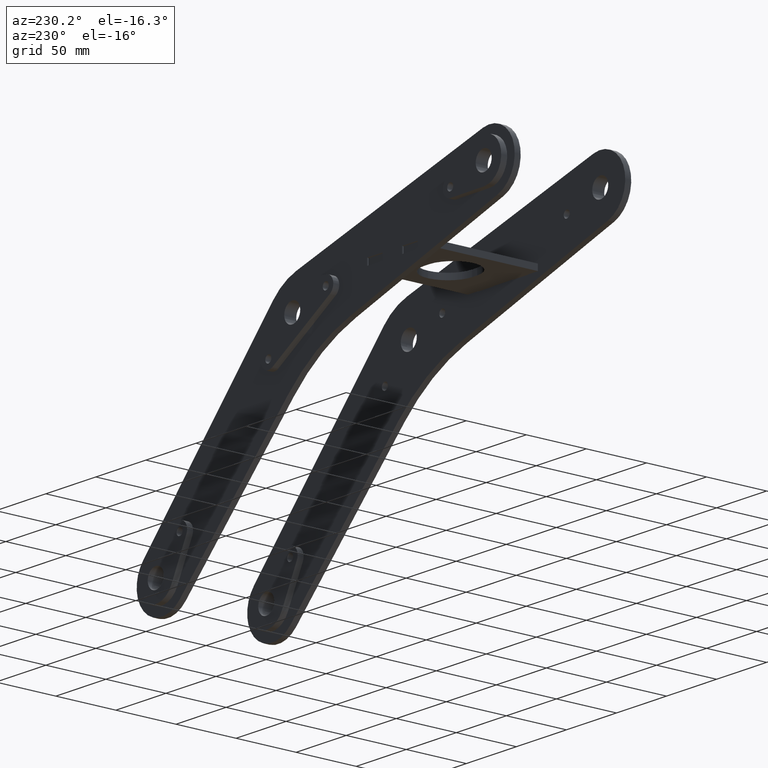
[diagram: clean part render]
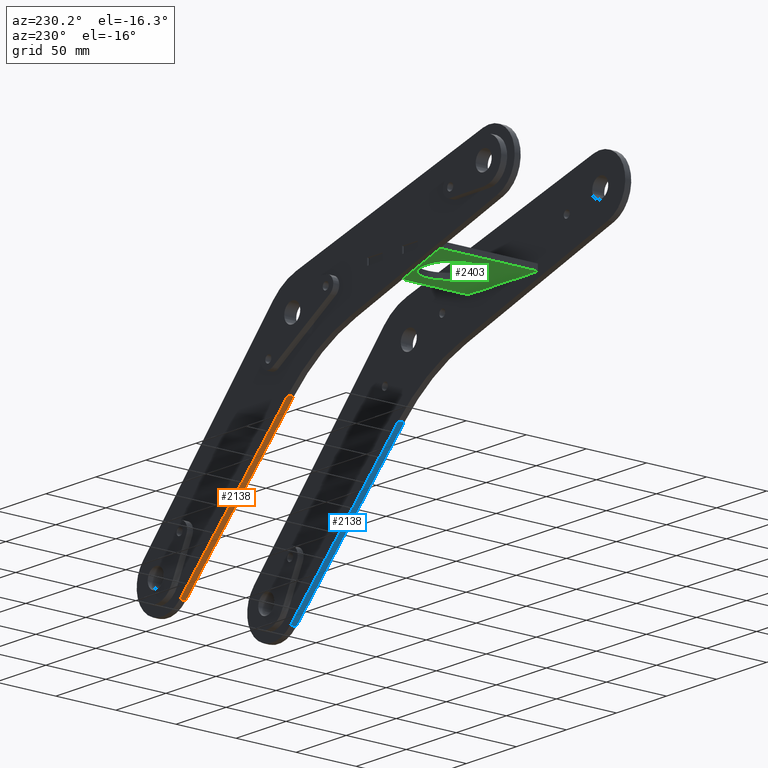
[diagram: same view with three faces highlighted in distinct colors, each labeled with its STEP entity id]
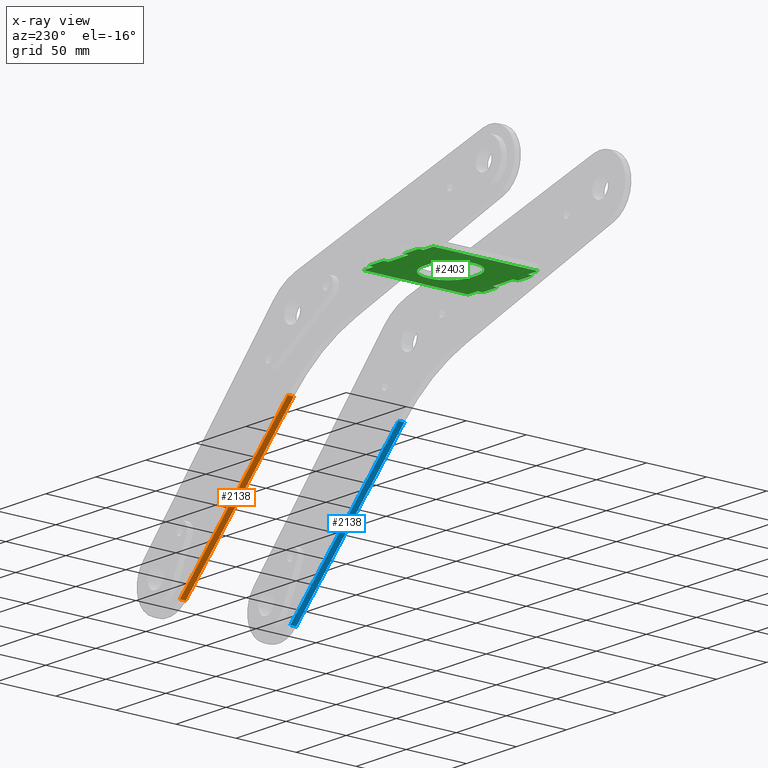
[diagram: x-ray of the same camera — body ghosted, the three highlighted faces saturated]
A machine part, auxiliary view with three faces highlighted in distinct colors.
The next image is the same camera in x-ray (body ghosted, the three faces saturated) — at least one of them is partly hidden behind the body in this view.
Their STEP definitions:

[orange] entity #2138 — the highlighted planar face has unit normal (-0.7193, -0, -0.6947).
#120 = EDGE_CURVE ( 'NONE', #1341, #959, #1098, .T. ) ;
#202 = DIRECTION ( 'NONE',  ( 0.8746197071393919664, -0.4848096202463438309, -0.000000000000000000 ) ) ;
#219 = CARTESIAN_POINT ( 'NONE',  ( 161.0848402507290302, -121.8654926784849835, 0.000000000000000000 ) ) ;
#236 = EDGE_LOOP ( 'NONE', ( #1640, #3608, #1379, #1968 ) ) ;
#864 = CARTESIAN_POINT ( 'NONE',  ( 161.0848402507290302, -121.8654926784849835, -5.000000000000000000 ) ) ;
#959 = VERTEX_POINT ( 'NONE', #3741 ) ;
#972 = VERTEX_POINT ( 'NONE', #2533 ) ;
#1063 = LINE ( 'NONE', #1651, #3520 ) ;
#1098 = LINE ( 'NONE', #219, #3553 ) ;
#1113 = DIRECTION ( 'NONE',  ( 0.000000000000000000, 0.000000000000000000, 1.000000000000000000 ) ) ;
#1197 = CARTESIAN_POINT ( 'NONE',  ( 25.11045735940951218, -46.49366147612066413, 0.000000000000000000 ) ) ;
#1341 = VERTEX_POINT ( 'NONE', #1197 ) ;
#1359 = DIRECTION ( 'NONE',  ( 0.000000000000000000, 0.000000000000000000, 1.000000000000000000 ) ) ;
#1379 = ORIENTED_EDGE ( 'NONE', *, *, #1573, .T. ) ;
#1418 = CARTESIAN_POINT ( 'NONE',  ( 161.0848402507290302, -121.8654926784849835, -5.000000000000000000 ) ) ;
#1573 = EDGE_CURVE ( 'NONE', #972, #2376, #1063, .T. ) ;
#1640 = ORIENTED_EDGE ( 'NONE', *, *, #120, .F. ) ;
#1647 = LINE ( 'NONE', #1922, #2715 ) ;
#1651 = CARTESIAN_POINT ( 'NONE',  ( 161.0848402507290302, -121.8654926784849835, -5.000000000000000000 ) ) ;
#1882 = DIRECTION ( 'NONE',  ( 0.8746197071393919664, -0.4848096202463438309, 0.000000000000000000 ) ) ;
#1922 = CARTESIAN_POINT ( 'NONE',  ( 25.11045735940951218, -46.49366147612066413, -5.000000000000000000 ) ) ;
#1968 = ORIENTED_EDGE ( 'NONE', *, *, #2262, .T. ) ;
#2050 = EDGE_CURVE ( 'NONE', #972, #1341, #1647, .T. ) ;
#2138 = ADVANCED_FACE ( 'NONE', ( #3432 ), #3079, .T. ) ;
#2188 = CARTESIAN_POINT ( 'NONE',  ( 161.0848402507290302, -121.8654926784849835, -5.000000000000000000 ) ) ;
#2262 = EDGE_CURVE ( 'NONE', #2376, #959, #2852, .T. ) ;
#2376 = VERTEX_POINT ( 'NONE', #1418 ) ;
#2529 = AXIS2_PLACEMENT_3D ( 'NONE', #2188, #3120, #1882 ) ;
#2533 = CARTESIAN_POINT ( 'NONE',  ( 25.11045735940951218, -46.49366147612066413, -5.000000000000000000 ) ) ;
#2656 = VECTOR ( 'NONE', #1113, 1000.000000000000000 ) ;
#2715 = VECTOR ( 'NONE', #1359, 1000.000000000000000 ) ;
#2852 = LINE ( 'NONE', #864, #2656 ) ;
#3079 = PLANE ( 'NONE',  #2529 ) ;
#3120 = DIRECTION ( 'NONE',  ( -0.4848096202463438864, -0.8746197071393920774, 0.000000000000000000 ) ) ;
#3432 = FACE_OUTER_BOUND ( 'NONE', #236, .T. ) ;
#3520 = VECTOR ( 'NONE', #202, 1000.000000000000227 ) ;
#3553 = VECTOR ( 'NONE', #3733, 1000.000000000000227 ) ;
#3608 = ORIENTED_EDGE ( 'NONE', *, *, #2050, .F. ) ;
#3733 = DIRECTION ( 'NONE',  ( 0.8746197071393919664, -0.4848096202463438309, -0.000000000000000000 ) ) ;
#3741 = CARTESIAN_POINT ( 'NONE',  ( 161.0848402507290302, -121.8654926784849835, 0.000000000000000000 ) ) ;

[blue] entity #2138 — the highlighted planar face has unit normal (-0.7193, 0, -0.6947).
#120 = EDGE_CURVE ( 'NONE', #1341, #959, #1098, .T. ) ;
#202 = DIRECTION ( 'NONE',  ( 0.8746197071393919664, -0.4848096202463438309, -0.000000000000000000 ) ) ;
#219 = CARTESIAN_POINT ( 'NONE',  ( 161.0848402507290302, -121.8654926784849835, 0.000000000000000000 ) ) ;
#236 = EDGE_LOOP ( 'NONE', ( #1640, #3608, #1379, #1968 ) ) ;
#864 = CARTESIAN_POINT ( 'NONE',  ( 161.0848402507290302, -121.8654926784849835, -5.000000000000000000 ) ) ;
#959 = VERTEX_POINT ( 'NONE', #3741 ) ;
#972 = VERTEX_POINT ( 'NONE', #2533 ) ;
#1063 = LINE ( 'NONE', #1651, #3520 ) ;
#1098 = LINE ( 'NONE', #219, #3553 ) ;
#1113 = DIRECTION ( 'NONE',  ( 0.000000000000000000, 0.000000000000000000, 1.000000000000000000 ) ) ;
#1197 = CARTESIAN_POINT ( 'NONE',  ( 25.11045735940951218, -46.49366147612066413, 0.000000000000000000 ) ) ;
#1341 = VERTEX_POINT ( 'NONE', #1197 ) ;
#1359 = DIRECTION ( 'NONE',  ( 0.000000000000000000, 0.000000000000000000, 1.000000000000000000 ) ) ;
#1379 = ORIENTED_EDGE ( 'NONE', *, *, #1573, .T. ) ;
#1418 = CARTESIAN_POINT ( 'NONE',  ( 161.0848402507290302, -121.8654926784849835, -5.000000000000000000 ) ) ;
#1573 = EDGE_CURVE ( 'NONE', #972, #2376, #1063, .T. ) ;
#1640 = ORIENTED_EDGE ( 'NONE', *, *, #120, .F. ) ;
#1647 = LINE ( 'NONE', #1922, #2715 ) ;
#1651 = CARTESIAN_POINT ( 'NONE',  ( 161.0848402507290302, -121.8654926784849835, -5.000000000000000000 ) ) ;
#1882 = DIRECTION ( 'NONE',  ( 0.8746197071393919664, -0.4848096202463438309, 0.000000000000000000 ) ) ;
#1922 = CARTESIAN_POINT ( 'NONE',  ( 25.11045735940951218, -46.49366147612066413, -5.000000000000000000 ) ) ;
#1968 = ORIENTED_EDGE ( 'NONE', *, *, #2262, .T. ) ;
#2050 = EDGE_CURVE ( 'NONE', #972, #1341, #1647, .T. ) ;
#2138 = ADVANCED_FACE ( 'NONE', ( #3432 ), #3079, .T. ) ;
#2188 = CARTESIAN_POINT ( 'NONE',  ( 161.0848402507290302, -121.8654926784849835, -5.000000000000000000 ) ) ;
#2262 = EDGE_CURVE ( 'NONE', #2376, #959, #2852, .T. ) ;
#2376 = VERTEX_POINT ( 'NONE', #1418 ) ;
#2529 = AXIS2_PLACEMENT_3D ( 'NONE', #2188, #3120, #1882 ) ;
#2533 = CARTESIAN_POINT ( 'NONE',  ( 25.11045735940951218, -46.49366147612066413, -5.000000000000000000 ) ) ;
#2656 = VECTOR ( 'NONE', #1113, 1000.000000000000000 ) ;
#2715 = VECTOR ( 'NONE', #1359, 1000.000000000000000 ) ;
#2852 = LINE ( 'NONE', #864, #2656 ) ;
#3079 = PLANE ( 'NONE',  #2529 ) ;
#3120 = DIRECTION ( 'NONE',  ( -0.4848096202463438864, -0.8746197071393920774, 0.000000000000000000 ) ) ;
#3432 = FACE_OUTER_BOUND ( 'NONE', #236, .T. ) ;
#3520 = VECTOR ( 'NONE', #202, 1000.000000000000227 ) ;
#3553 = VECTOR ( 'NONE', #3733, 1000.000000000000227 ) ;
#3608 = ORIENTED_EDGE ( 'NONE', *, *, #2050, .F. ) ;
#3733 = DIRECTION ( 'NONE',  ( 0.8746197071393919664, -0.4848096202463438309, -0.000000000000000000 ) ) ;
#3741 = CARTESIAN_POINT ( 'NONE',  ( 161.0848402507290302, -121.8654926784849835, 0.000000000000000000 ) ) ;

[green] entity #2403 — the highlighted planar face has unit normal (0, 0, -1).
#32 = CARTESIAN_POINT ( 'NONE',  ( 10.00000000000001599, 46.49999999999998579, -2.500000000000000000 ) ) ;
#47 = VERTEX_POINT ( 'NONE', #1903 ) ;
#56 = AXIS2_PLACEMENT_3D ( 'NONE', #3230, #2941, #587 ) ;
#58 = EDGE_CURVE ( 'NONE', #3204, #233, #3239, .T. ) ;
#59 = PLANE ( 'NONE',  #1729 ) ;
#65 = DIRECTION ( 'NONE',  ( 0.000000000000000000, 0.000000000000000000, 1.000000000000000000 ) ) ;
#79 = FACE_OUTER_BOUND ( 'NONE', #1256, .T. ) ;
#88 = CARTESIAN_POINT ( 'NONE',  ( 2.500000000000000000, 19.99999999999999645, -2.500000000000000000 ) ) ;
#104 = CARTESIAN_POINT ( 'NONE',  ( 24.00000000000001421, 46.49999999999998579, -2.500000000000000000 ) ) ;
#119 = AXIS2_PLACEMENT_3D ( 'NONE', #895, #2646, #3483 ) ;
#128 = VERTEX_POINT ( 'NONE', #1190 ) ;
#141 = DIRECTION ( 'NONE',  ( -0.000000000000000000, 1.000000000000000000, -0.000000000000000000 ) ) ;
#146 = ORIENTED_EDGE ( 'NONE', *, *, #3015, .T. ) ;
#149 = EDGE_CURVE ( 'NONE', #1027, #1411, #2255, .T. ) ;
#168 = DIRECTION ( 'NONE',  ( 1.000000000000000000, 0.000000000000000000, 0.000000000000000000 ) ) ;
#170 = ORIENTED_EDGE ( 'NONE', *, *, #149, .F. ) ;
#177 = CARTESIAN_POINT ( 'NONE',  ( 35.00000000000000000, 43.50000000000001421, -2.500000000000000000 ) ) ;
#192 = VERTEX_POINT ( 'NONE', #2148 ) ;
#203 = DIRECTION ( 'NONE',  ( -1.595148023886719315E-16, 1.000000000000000000, -0.000000000000000000 ) ) ;
#205 = VECTOR ( 'NONE', #830, 1000.000000000000000 ) ;
#210 = ORIENTED_EDGE ( 'NONE', *, *, #1201, .T. ) ;
#214 = CIRCLE ( 'NONE', #2223, 1.000000000000000888 ) ;
#233 = VERTEX_POINT ( 'NONE', #3038 ) ;
#254 = EDGE_CURVE ( 'NONE', #1802, #2805, #390, .T. ) ;
#268 = CARTESIAN_POINT ( 'NONE',  ( -23.99999999999998579, -47.49999999999998579, -2.500000000000000000 ) ) ;
#291 = LINE ( 'NONE', #2647, #1179 ) ;
#312 = LINE ( 'NONE', #3507, #2716 ) ;
#318 = CARTESIAN_POINT ( 'NONE',  ( 0.000000000000000000, 0.000000000000000000, -2.500000000000000000 ) ) ;
#329 = EDGE_CURVE ( 'NONE', #1747, #2325, #2733, .T. ) ;
#363 = CIRCLE ( 'NONE', #679, 1.000000000000000888 ) ;
#390 = LINE ( 'NONE', #2480, #394 ) ;
#394 = VECTOR ( 'NONE', #2752, 1000.000000000000000 ) ;
#402 = CARTESIAN_POINT ( 'NONE',  ( 35.00000000000001421, -43.49999999999998579, -2.500000000000000000 ) ) ;
#408 = DIRECTION ( 'NONE',  ( -0.000000000000000000, 1.000000000000000000, -0.000000000000000000 ) ) ;
#454 = CARTESIAN_POINT ( 'NONE',  ( 11.00000000000001599, -46.49999999999998579, -2.500000000000000000 ) ) ;
#473 = CARTESIAN_POINT ( 'NONE',  ( -9.999999999999987566, -43.49999999999998579, -2.500000000000000000 ) ) ;
#506 = CARTESIAN_POINT ( 'NONE',  ( 10.00000000000001599, 47.49999999999998579, -2.500000000000000000 ) ) ;
#516 = EDGE_CURVE ( 'NONE', #1429, #3338, #3155, .T. ) ;
#539 = VERTEX_POINT ( 'NONE', #2945 ) ;
#540 = B_SPLINE_CURVE_WITH_KNOTS ( 'NONE', 1,
 ( #1152, #2326 ),
 .UNSPECIFIED., .F., .F.,
 ( 2, 2 ),
 ( 0.1500000000000000222, 0.4749999999999999778 ),
 .UNSPECIFIED. ) ;
#543 = VERTEX_POINT ( 'NONE', #1147 ) ;
#549 = ORIENTED_EDGE ( 'NONE', *, *, #1475, .F. ) ;
#550 = CARTESIAN_POINT ( 'NONE',  ( 35.00000000000000000, 43.50000000000001421, -2.500000000000000000 ) ) ;
#554 = EDGE_CURVE ( 'NONE', #539, #3747, #312, .T. ) ;
#587 = DIRECTION ( 'NONE',  ( 1.000000000000000000, 0.000000000000000000, 0.000000000000000000 ) ) ;
#609 = B_SPLINE_CURVE_WITH_KNOTS ( 'NONE', 1,
 ( #3503, #268 ),
 .UNSPECIFIED., .F., .F.,
 ( 2, 2 ),
 ( 0.1500000000000000222, 0.4749999999999999778 ),
 .UNSPECIFIED. ) ;
#623 = CARTESIAN_POINT ( 'NONE',  ( -23.99999999999998579, 46.49999999999998579, -2.500000000000000000 ) ) ;
#624 = VERTEX_POINT ( 'NONE', #550 ) ;
#679 = AXIS2_PLACEMENT_3D ( 'NONE', #984, #1561, #2394 ) ;
#719 = ORIENTED_EDGE ( 'NONE', *, *, #892, .T. ) ;
#722 = ORIENTED_EDGE ( 'NONE', *, *, #2211, .F. ) ;
#730 = VERTEX_POINT ( 'NONE', #3308 ) ;
#762 = ORIENTED_EDGE ( 'NONE', *, *, #2385, .F. ) ;
#776 = CARTESIAN_POINT ( 'NONE',  ( -9.999999999999987566, -46.49999999999998579, -2.500000000000000000 ) ) ;
#788 = LINE ( 'NONE', #2755, #1175 ) ;
#793 = ORIENTED_EDGE ( 'NONE', *, *, #3445, .T. ) ;
#798 = VERTEX_POINT ( 'NONE', #3567 ) ;
#800 = DIRECTION ( 'NONE',  ( -1.000000000000000000, 0.000000000000000000, 0.000000000000000000 ) ) ;
#812 = VECTOR ( 'NONE', #408, 1000.000000000000000 ) ;
#830 = DIRECTION ( 'NONE',  ( 1.595148023886719315E-16, -1.000000000000000000, 0.000000000000000000 ) ) ;
#873 = B_SPLINE_CURVE_WITH_KNOTS ( 'NONE', 1,
 ( #3621, #2761 ),
 .UNSPECIFIED., .F., .F.,
 ( 2, 2 ),
 ( 0.1500000000000000222, 0.4749999999999999778 ),
 .UNSPECIFIED. ) ;
#892 = EDGE_CURVE ( 'NONE', #192, #730, #1219, .T. ) ;
#895 = CARTESIAN_POINT ( 'NONE',  ( -23.99999999999998579, -46.49999999999998579, -2.500000000000000000 ) ) ;
#910 = ORIENTED_EDGE ( 'NONE', *, *, #2369, .T. ) ;
#916 = EDGE_CURVE ( 'NONE', #3158, #3625, #2784, .T. ) ;
#978 = ORIENTED_EDGE ( 'NONE', *, *, #554, .T. ) ;
#979 = DIRECTION ( 'NONE',  ( -0.000000000000000000, 1.000000000000000000, -0.000000000000000000 ) ) ;
#984 = CARTESIAN_POINT ( 'NONE',  ( 11.00000000000001599, 46.49999999999998579, -2.500000000000000000 ) ) ;
#1010 = CARTESIAN_POINT ( 'NONE',  ( -9.999999999999987566, -47.49999999999998579, -2.500000000000000000 ) ) ;
#1015 = DIRECTION ( 'NONE',  ( 0.000000000000000000, -1.000000000000000000, 0.000000000000000000 ) ) ;
#1020 = DIRECTION ( 'NONE',  ( -0.000000000000000000, -0.000000000000000000, -1.000000000000000000 ) ) ;
#1027 = VERTEX_POINT ( 'NONE', #2512 ) ;
#1036 = CARTESIAN_POINT ( 'NONE',  ( -10.99999999999998934, -47.49999999999998579, -2.500000000000000000 ) ) ;
#1055 = ORIENTED_EDGE ( 'NONE', *, *, #516, .F. ) ;
#1056 = LINE ( 'NONE', #177, #2837 ) ;
#1057 = CARTESIAN_POINT ( 'NONE',  ( 25.00000000000001421, 43.50000000000001421, -2.500000000000000000 ) ) ;
#1080 = EDGE_CURVE ( 'NONE', #3338, #1124, #1699, .T. ) ;
#1096 = CARTESIAN_POINT ( 'NONE',  ( -23.99999999999998579, 47.49999999999998579, -2.500000000000000000 ) ) ;
#1110 = CARTESIAN_POINT ( 'NONE',  ( 35.00000000000001421, -43.49999999999998579, -2.500000000000000000 ) ) ;
#1114 = AXIS2_PLACEMENT_3D ( 'NONE', #3764, #1727, #2890 ) ;
#1124 = VERTEX_POINT ( 'NONE', #3149 ) ;
#1129 = DIRECTION ( 'NONE',  ( 0.000000000000000000, -0.000000000000000000, 1.000000000000000000 ) ) ;
#1138 = DIRECTION ( 'NONE',  ( 0.000000000000000000, -1.000000000000000000, 0.000000000000000000 ) ) ;
#1147 = CARTESIAN_POINT ( 'NONE',  ( 11.00000000000001599, 47.49999999999998579, -2.500000000000000000 ) ) ;
#1152 = CARTESIAN_POINT ( 'NONE',  ( 24.00000000000001421, 47.49999999999998579, -2.500000000000000000 ) ) ;
#1163 = VERTEX_POINT ( 'NONE', #3794 ) ;
#1174 = LINE ( 'NONE', #2009, #3469 ) ;
#1175 = VECTOR ( 'NONE', #1279, 1000.000000000000000 ) ;
#1177 = EDGE_CURVE ( 'NONE', #730, #47, #1420, .T. ) ;
#1179 = VECTOR ( 'NONE', #2318, 1000.000000000000000 ) ;
#1190 = CARTESIAN_POINT ( 'NONE',  ( 24.00000000000001421, -47.49999999999998579, -2.500000000000000000 ) ) ;
#1201 = EDGE_CURVE ( 'NONE', #1445, #2816, #291, .T. ) ;
#1211 = DIRECTION ( 'NONE',  ( 1.000000000000000000, 0.000000000000000000, 0.000000000000000000 ) ) ;
#1219 = LINE ( 'NONE', #2709, #2283 ) ;
#1228 = VERTEX_POINT ( 'NONE', #2016 ) ;
#1229 = CARTESIAN_POINT ( 'NONE',  ( -34.99999999999999289, -43.50000000000000000, -2.500000000000000000 ) ) ;
#1234 = VECTOR ( 'NONE', #2863, 1000.000000000000000 ) ;
#1238 = VECTOR ( 'NONE', #1751, 1000.000000000000000 ) ;
#1245 = EDGE_CURVE ( 'NONE', #2473, #1747, #3652, .T. ) ;
#1256 = EDGE_LOOP ( 'NONE', ( #170, #1512, #3511, #2675, #1739, #3238, #3016, #3000, #1055, #2836, #762, #2316, #978, #722, #3188, #1324, #3549, #1792, #146, #3094, #3801, #2142, #3322, #910, #2126, #1333, #2577, #549 ) ) ;
#1257 = CARTESIAN_POINT ( 'NONE',  ( -24.99999999999998579, -47.49999999999998579, -2.500000000000000000 ) ) ;
#1272 = EDGE_CURVE ( 'NONE', #2110, #2473, #609, .T. ) ;
#1279 = DIRECTION ( 'NONE',  ( -1.000000000000000000, -1.982541115402065110E-16, 0.000000000000000000 ) ) ;
#1312 = EDGE_CURVE ( 'NONE', #3399, #128, #1664, .T. ) ;
#1315 = VECTOR ( 'NONE', #3452, 1000.000000000000000 ) ;
#1324 = ORIENTED_EDGE ( 'NONE', *, *, #1735, .F. ) ;
#1333 = ORIENTED_EDGE ( 'NONE', *, *, #1245, .T. ) ;
#1363 = CIRCLE ( 'NONE', #3342, 19.99999999999999645 ) ;
#1369 = VERTEX_POINT ( 'NONE', #3205 ) ;
#1392 = CARTESIAN_POINT ( 'NONE',  ( 35.00000000000000000, 43.50000000000001421, -2.500000000000000000 ) ) ;
#1411 = VERTEX_POINT ( 'NONE', #1229 ) ;
#1413 = EDGE_CURVE ( 'NONE', #543, #1429, #363, .T. ) ;
#1420 = CIRCLE ( 'NONE', #56, 19.99999999999999645 ) ;
#1422 = AXIS2_PLACEMENT_3D ( 'NONE', #104, #1853, #3657 ) ;
#1423 = LINE ( 'NONE', #2604, #1238 ) ;
#1429 = VERTEX_POINT ( 'NONE', #32 ) ;
#1430 = CARTESIAN_POINT ( 'NONE',  ( 24.00000000000001421, -46.49999999999998579, -2.500000000000000000 ) ) ;
#1445 = VERTEX_POINT ( 'NONE', #88 ) ;
#1475 = EDGE_CURVE ( 'NONE', #1411, #2325, #2687, .T. ) ;
#1512 = ORIENTED_EDGE ( 'NONE', *, *, #2209, .F. ) ;
#1530 = EDGE_CURVE ( 'NONE', #1950, #1802, #2666, .T. ) ;
#1561 = DIRECTION ( 'NONE',  ( 0.000000000000000000, -0.000000000000000000, 1.000000000000000000 ) ) ;
#1567 = VECTOR ( 'NONE', #979, 1000.000000000000000 ) ;
#1574 = CARTESIAN_POINT ( 'NONE',  ( -2.500000000000000000, -3.469446951953614189E-15, -2.500000000000000000 ) ) ;
#1578 = EDGE_CURVE ( 'NONE', #3399, #1163, #3106, .T. ) ;
#1628 = DIRECTION ( 'NONE',  ( -1.000000000000000000, 0.000000000000000000, 0.000000000000000000 ) ) ;
#1636 = EDGE_LOOP ( 'NONE', ( #2013, #719, #2762, #793, #210 ) ) ;
#1664 = CIRCLE ( 'NONE', #2663, 1.000000000000000888 ) ;
#1699 = LINE ( 'NONE', #1392, #1234 ) ;
#1727 = DIRECTION ( 'NONE',  ( -0.000000000000000000, -0.000000000000000000, -1.000000000000000000 ) ) ;
#1729 = AXIS2_PLACEMENT_3D ( 'NONE', #318, #3629, #3291 ) ;
#1734 = VECTOR ( 'NONE', #141, 1000.000000000000000 ) ;
#1735 = EDGE_CURVE ( 'NONE', #1163, #2463, #1423, .T. ) ;
#1739 = ORIENTED_EDGE ( 'NONE', *, *, #3687, .F. ) ;
#1747 = VERTEX_POINT ( 'NONE', #2271 ) ;
#1751 = DIRECTION ( 'NONE',  ( 1.000000000000000000, 1.982541115402065110E-16, -0.000000000000000000 ) ) ;
#1792 = ORIENTED_EDGE ( 'NONE', *, *, #1312, .T. ) ;
#1802 = VERTEX_POINT ( 'NONE', #3477 ) ;
#1828 = CARTESIAN_POINT ( 'NONE',  ( 25.00000000000001421, -46.49999999999998579, -2.500000000000000000 ) ) ;
#1853 = DIRECTION ( 'NONE',  ( 0.000000000000000000, -0.000000000000000000, 1.000000000000000000 ) ) ;
#1899 = CARTESIAN_POINT ( 'NONE',  ( 11.00000000000001599, -47.49999999999998579, -2.500000000000000000 ) ) ;
#1903 = CARTESIAN_POINT ( 'NONE',  ( 22.49999999999999645, -3.469446951953614189E-15, -2.500000000000000000 ) ) ;
#1942 = DIRECTION ( 'NONE',  ( 1.000000000000000000, 0.000000000000000000, 0.000000000000000000 ) ) ;
#1943 = CARTESIAN_POINT ( 'NONE',  ( -10.99999999999998934, 47.49999999999998579, -2.500000000000000000 ) ) ;
#1950 = VERTEX_POINT ( 'NONE', #3279 ) ;
#1977 = CIRCLE ( 'NONE', #3646, 19.99999999999999645 ) ;
#2009 = CARTESIAN_POINT ( 'NONE',  ( -9.999999999999987566, 47.49999999999998579, -2.500000000000000000 ) ) ;
#2013 = ORIENTED_EDGE ( 'NONE', *, *, #2078, .T. ) ;
#2016 = CARTESIAN_POINT ( 'NONE',  ( -10.99999999999998934, 47.49999999999998579, -2.500000000000000000 ) ) ;
#2046 = VECTOR ( 'NONE', #3300, 1000.000000000000000 ) ;
#2047 = CARTESIAN_POINT ( 'NONE',  ( 10.00000000000001599, 43.50000000000000711, -2.500000000000000000 ) ) ;
#2078 = EDGE_CURVE ( 'NONE', #2816, #192, #1977, .T. ) ;
#2090 = VERTEX_POINT ( 'NONE', #1899 ) ;
#2110 = VERTEX_POINT ( 'NONE', #1036 ) ;
#2126 = ORIENTED_EDGE ( 'NONE', *, *, #1272, .T. ) ;
#2142 = ORIENTED_EDGE ( 'NONE', *, *, #2885, .F. ) ;
#2148 = CARTESIAN_POINT ( 'NONE',  ( -2.500000000000000000, -19.99999999999999645, -2.500000000000000000 ) ) ;
#2209 = EDGE_CURVE ( 'NONE', #2805, #1027, #1056, .T. ) ;
#2211 = EDGE_CURVE ( 'NONE', #624, #3747, #788, .T. ) ;
#2212 = CARTESIAN_POINT ( 'NONE',  ( 25.00000000000001421, -47.49999999999998579, -2.500000000000000000 ) ) ;
#2223 = AXIS2_PLACEMENT_3D ( 'NONE', #2635, #1129, #800 ) ;
#2255 = LINE ( 'NONE', #2291, #205 ) ;
#2271 = CARTESIAN_POINT ( 'NONE',  ( -24.99999999999998579, -46.49999999999998579, -2.500000000000000000 ) ) ;
#2272 = CARTESIAN_POINT ( 'NONE',  ( 35.00000000000000000, 43.50000000000001421, -2.500000000000000000 ) ) ;
#2282 = DIRECTION ( 'NONE',  ( 1.000000000000000000, 1.982541115402065110E-16, -0.000000000000000000 ) ) ;
#2283 = VECTOR ( 'NONE', #168, 1000.000000000000000 ) ;
#2291 = CARTESIAN_POINT ( 'NONE',  ( -35.00000000000000000, 43.50000000000000000, -2.500000000000000000 ) ) ;
#2316 = ORIENTED_EDGE ( 'NONE', *, *, #2930, .F. ) ;
#2318 = DIRECTION ( 'NONE',  ( -1.000000000000000000, -0.000000000000000000, -0.000000000000000000 ) ) ;
#2325 = VERTEX_POINT ( 'NONE', #3492 ) ;
#2326 = CARTESIAN_POINT ( 'NONE',  ( 11.00000000000001599, 47.49999999999998579, -2.500000000000000000 ) ) ;
#2346 = VECTOR ( 'NONE', #1015, 1000.000000000000000 ) ;
#2369 = EDGE_CURVE ( 'NONE', #3158, #2110, #3529, .T. ) ;
#2385 = EDGE_CURVE ( 'NONE', #798, #543, #540, .T. ) ;
#2388 = CARTESIAN_POINT ( 'NONE',  ( 35.00000000000001421, -43.49999999999998579, -2.500000000000000000 ) ) ;
#2394 = DIRECTION ( 'NONE',  ( -1.000000000000000000, 0.000000000000000000, 0.000000000000000000 ) ) ;
#2403 = ADVANCED_FACE ( 'NONE', ( #3610, #79 ), #59, .T. ) ;
#2411 = CIRCLE ( 'NONE', #1422, 1.000000000000000888 ) ;
#2415 = DIRECTION ( 'NONE',  ( -1.000000000000000000, 0.000000000000000000, 0.000000000000000000 ) ) ;
#2463 = VERTEX_POINT ( 'NONE', #2388 ) ;
#2473 = VERTEX_POINT ( 'NONE', #3589 ) ;
#2480 = CARTESIAN_POINT ( 'NONE',  ( -24.99999999999998579, 47.49999999999998579, -2.500000000000000000 ) ) ;
#2512 = CARTESIAN_POINT ( 'NONE',  ( -35.00000000000000000, 43.50000000000000000, -2.500000000000000000 ) ) ;
#2577 = ORIENTED_EDGE ( 'NONE', *, *, #329, .T. ) ;
#2580 = CARTESIAN_POINT ( 'NONE',  ( 10.00000000000001599, -47.49999999999998579, -2.500000000000000000 ) ) ;
#2604 = CARTESIAN_POINT ( 'NONE',  ( 35.00000000000001421, -43.49999999999998579, -2.500000000000000000 ) ) ;
#2635 = CARTESIAN_POINT ( 'NONE',  ( -10.99999999999998934, 46.49999999999998579, -2.500000000000000000 ) ) ;
#2646 = DIRECTION ( 'NONE',  ( -0.000000000000000000, -0.000000000000000000, -1.000000000000000000 ) ) ;
#2647 = CARTESIAN_POINT ( 'NONE',  ( -2.500000000000000000, 19.99999999999999645, -2.500000000000000000 ) ) ;
#2663 = AXIS2_PLACEMENT_3D ( 'NONE', #1430, #3563, #3229 ) ;
#2666 = CIRCLE ( 'NONE', #3018, 1.000000000000000888 ) ;
#2675 = ORIENTED_EDGE ( 'NONE', *, *, #1530, .F. ) ;
#2687 = LINE ( 'NONE', #402, #2046 ) ;
#2705 = DIRECTION ( 'NONE',  ( 0.000000000000000000, -0.000000000000000000, 1.000000000000000000 ) ) ;
#2709 = CARTESIAN_POINT ( 'NONE',  ( -2.500000000000000000, -19.99999999999999645, -2.500000000000000000 ) ) ;
#2716 = VECTOR ( 'NONE', #2959, 1000.000000000000000 ) ;
#2733 = LINE ( 'NONE', #1257, #1567 ) ;
#2738 = EDGE_CURVE ( 'NONE', #1369, #1228, #214, .T. ) ;
#2752 = DIRECTION ( 'NONE',  ( 0.000000000000000000, -1.000000000000000000, 0.000000000000000000 ) ) ;
#2755 = CARTESIAN_POINT ( 'NONE',  ( 35.00000000000000000, 43.50000000000001421, -2.500000000000000000 ) ) ;
#2761 = CARTESIAN_POINT ( 'NONE',  ( 11.00000000000001599, -47.49999999999998579, -2.500000000000000000 ) ) ;
#2762 = ORIENTED_EDGE ( 'NONE', *, *, #1177, .T. ) ;
#2780 = VECTOR ( 'NONE', #2282, 1000.000000000000000 ) ;
#2784 = LINE ( 'NONE', #1010, #812 ) ;
#2785 = AXIS2_PLACEMENT_3D ( 'NONE', #454, #1020, #1628 ) ;
#2805 = VERTEX_POINT ( 'NONE', #3745 ) ;
#2816 = VERTEX_POINT ( 'NONE', #2908 ) ;
#2836 = ORIENTED_EDGE ( 'NONE', *, *, #1413, .F. ) ;
#2837 = VECTOR ( 'NONE', #3730, 1000.000000000000000 ) ;
#2863 = DIRECTION ( 'NONE',  ( -1.000000000000000000, -1.982541115402065110E-16, 0.000000000000000000 ) ) ;
#2885 = EDGE_CURVE ( 'NONE', #3625, #233, #3762, .T. ) ;
#2890 = DIRECTION ( 'NONE',  ( -1.000000000000000000, 0.000000000000000000, 0.000000000000000000 ) ) ;
#2908 = CARTESIAN_POINT ( 'NONE',  ( -2.500000000000000000, 19.99999999999999645, -2.500000000000000000 ) ) ;
#2930 = EDGE_CURVE ( 'NONE', #539, #798, #2411, .T. ) ;
#2941 = DIRECTION ( 'NONE',  ( 0.000000000000000000, 0.000000000000000000, 1.000000000000000000 ) ) ;
#2945 = CARTESIAN_POINT ( 'NONE',  ( 25.00000000000001421, 46.49999999999998579, -2.500000000000000000 ) ) ;
#2959 = DIRECTION ( 'NONE',  ( 0.000000000000000000, -1.000000000000000000, 0.000000000000000000 ) ) ;
#2973 = CIRCLE ( 'NONE', #2785, 1.000000000000000888 ) ;
#3000 = ORIENTED_EDGE ( 'NONE', *, *, #1080, .F. ) ;
#3015 = EDGE_CURVE ( 'NONE', #128, #2090, #873, .T. ) ;
#3016 = ORIENTED_EDGE ( 'NONE', *, *, #3296, .T. ) ;
#3018 = AXIS2_PLACEMENT_3D ( 'NONE', #623, #2705, #2415 ) ;
#3038 = CARTESIAN_POINT ( 'NONE',  ( 10.00000000000001599, -43.49999999999998579, -2.500000000000000000 ) ) ;
#3087 = LINE ( 'NONE', #2272, #3337 ) ;
#3094 = ORIENTED_EDGE ( 'NONE', *, *, #3699, .T. ) ;
#3101 = DIRECTION ( 'NONE',  ( 0.000000000000000000, 0.000000000000000000, 1.000000000000000000 ) ) ;
#3106 = LINE ( 'NONE', #2212, #1734 ) ;
#3107 = CARTESIAN_POINT ( 'NONE',  ( 10.00000000000001599, -46.49999999999998579, -2.500000000000000000 ) ) ;
#3149 = CARTESIAN_POINT ( 'NONE',  ( -9.999999999999987566, 43.50000000000000711, -2.500000000000000000 ) ) ;
#3155 = LINE ( 'NONE', #506, #2346 ) ;
#3158 = VERTEX_POINT ( 'NONE', #776 ) ;
#3188 = ORIENTED_EDGE ( 'NONE', *, *, #3216, .F. ) ;
#3204 = VERTEX_POINT ( 'NONE', #3107 ) ;
#3205 = CARTESIAN_POINT ( 'NONE',  ( -9.999999999999987566, 46.49999999999998579, -2.500000000000000000 ) ) ;
#3216 = EDGE_CURVE ( 'NONE', #2463, #624, #3087, .T. ) ;
#3229 = DIRECTION ( 'NONE',  ( -1.000000000000000000, 0.000000000000000000, 0.000000000000000000 ) ) ;
#3230 = CARTESIAN_POINT ( 'NONE',  ( 2.500000000000000000, -3.469446951953614189E-15, -2.500000000000000000 ) ) ;
#3238 = ORIENTED_EDGE ( 'NONE', *, *, #2738, .F. ) ;
#3239 = LINE ( 'NONE', #2580, #1315 ) ;
#3259 = B_SPLINE_CURVE_WITH_KNOTS ( 'NONE', 1,
 ( #1943, #1096 ),
 .UNSPECIFIED., .F., .F.,
 ( 2, 2 ),
 ( 0.1500000000000000222, 0.4749999999999999778 ),
 .UNSPECIFIED. ) ;
#3279 = CARTESIAN_POINT ( 'NONE',  ( -23.99999999999998579, 47.49999999999998579, -2.500000000000000000 ) ) ;
#3291 = DIRECTION ( 'NONE',  ( -1.000000000000000000, 0.000000000000000000, -0.000000000000000000 ) ) ;
#3296 = EDGE_CURVE ( 'NONE', #1369, #1124, #1174, .T. ) ;
#3300 = DIRECTION ( 'NONE',  ( 1.000000000000000000, 1.982541115402065110E-16, -0.000000000000000000 ) ) ;
#3308 = CARTESIAN_POINT ( 'NONE',  ( 2.499999999999996447, -19.99999999999999645, -2.500000000000000000 ) ) ;
#3322 = ORIENTED_EDGE ( 'NONE', *, *, #916, .F. ) ;
#3337 = VECTOR ( 'NONE', #203, 1000.000000000000000 ) ;
#3338 = VERTEX_POINT ( 'NONE', #2047 ) ;
#3342 = AXIS2_PLACEMENT_3D ( 'NONE', #3575, #65, #1211 ) ;
#3399 = VERTEX_POINT ( 'NONE', #1828 ) ;
#3445 = EDGE_CURVE ( 'NONE', #47, #1445, #1363, .T. ) ;
#3452 = DIRECTION ( 'NONE',  ( -0.000000000000000000, 1.000000000000000000, -0.000000000000000000 ) ) ;
#3469 = VECTOR ( 'NONE', #1138, 1000.000000000000000 ) ;
#3477 = CARTESIAN_POINT ( 'NONE',  ( -24.99999999999998579, 46.49999999999998579, -2.500000000000000000 ) ) ;
#3483 = DIRECTION ( 'NONE',  ( -1.000000000000000000, 0.000000000000000000, 0.000000000000000000 ) ) ;
#3492 = CARTESIAN_POINT ( 'NONE',  ( -24.99999999999998579, -43.49999999999998579, -2.500000000000000000 ) ) ;
#3503 = CARTESIAN_POINT ( 'NONE',  ( -10.99999999999998934, -47.49999999999998579, -2.500000000000000000 ) ) ;
#3507 = CARTESIAN_POINT ( 'NONE',  ( 25.00000000000001421, 47.49999999999998579, -2.500000000000000000 ) ) ;
#3511 = ORIENTED_EDGE ( 'NONE', *, *, #254, .F. ) ;
#3529 = CIRCLE ( 'NONE', #1114, 1.000000000000000888 ) ;
#3549 = ORIENTED_EDGE ( 'NONE', *, *, #1578, .F. ) ;
#3563 = DIRECTION ( 'NONE',  ( -0.000000000000000000, -0.000000000000000000, -1.000000000000000000 ) ) ;
#3567 = CARTESIAN_POINT ( 'NONE',  ( 24.00000000000001421, 47.49999999999998579, -2.500000000000000000 ) ) ;
#3575 = CARTESIAN_POINT ( 'NONE',  ( 2.500000000000000000, -3.469446951953614189E-15, -2.500000000000000000 ) ) ;
#3589 = CARTESIAN_POINT ( 'NONE',  ( -23.99999999999998579, -47.49999999999998579, -2.500000000000000000 ) ) ;
#3610 = FACE_BOUND ( 'NONE', #1636, .T. ) ;
#3621 = CARTESIAN_POINT ( 'NONE',  ( 24.00000000000001421, -47.49999999999998579, -2.500000000000000000 ) ) ;
#3625 = VERTEX_POINT ( 'NONE', #473 ) ;
#3629 = DIRECTION ( 'NONE',  ( 0.000000000000000000, 0.000000000000000000, -1.000000000000000000 ) ) ;
#3646 = AXIS2_PLACEMENT_3D ( 'NONE', #1574, #3101, #1942 ) ;
#3652 = CIRCLE ( 'NONE', #119, 1.000000000000000888 ) ;
#3657 = DIRECTION ( 'NONE',  ( -1.000000000000000000, 0.000000000000000000, 0.000000000000000000 ) ) ;
#3687 = EDGE_CURVE ( 'NONE', #1228, #1950, #3259, .T. ) ;
#3699 = EDGE_CURVE ( 'NONE', #2090, #3204, #2973, .T. ) ;
#3730 = DIRECTION ( 'NONE',  ( -1.000000000000000000, -1.982541115402065110E-16, 0.000000000000000000 ) ) ;
#3745 = CARTESIAN_POINT ( 'NONE',  ( -24.99999999999998579, 43.50000000000000000, -2.500000000000000000 ) ) ;
#3747 = VERTEX_POINT ( 'NONE', #1057 ) ;
#3762 = LINE ( 'NONE', #1110, #2780 ) ;
#3764 = CARTESIAN_POINT ( 'NONE',  ( -10.99999999999998934, -46.49999999999998579, -2.500000000000000000 ) ) ;
#3794 = CARTESIAN_POINT ( 'NONE',  ( 25.00000000000001421, -43.49999999999998579, -2.500000000000000000 ) ) ;
#3801 = ORIENTED_EDGE ( 'NONE', *, *, #58, .T. ) ;